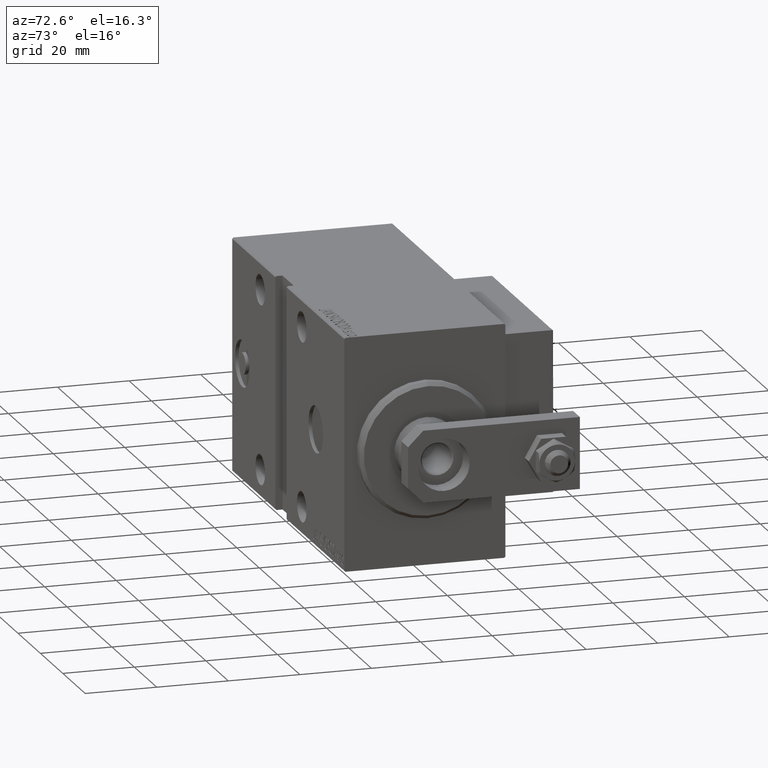
[diagram: clean part render]
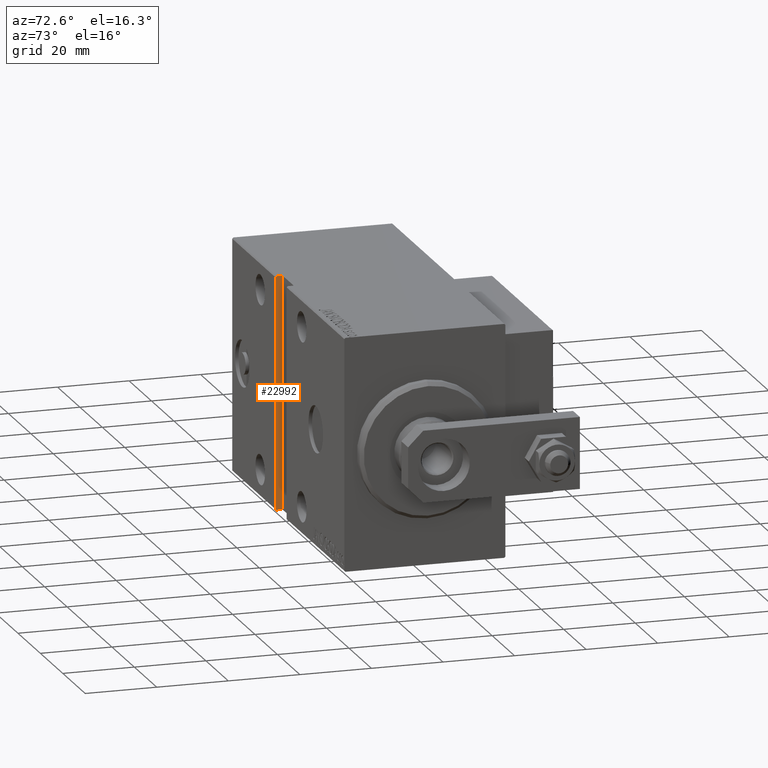
[diagram: same view with one face highlighted and labeled with its STEP entity id]
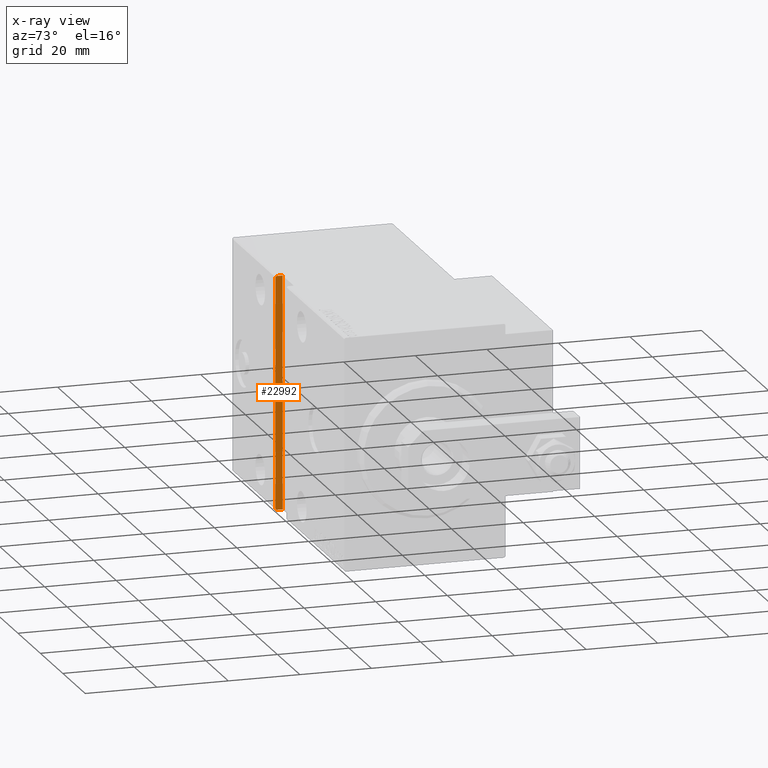
[diagram: x-ray of the same camera — body ghosted, the highlighted face saturated]
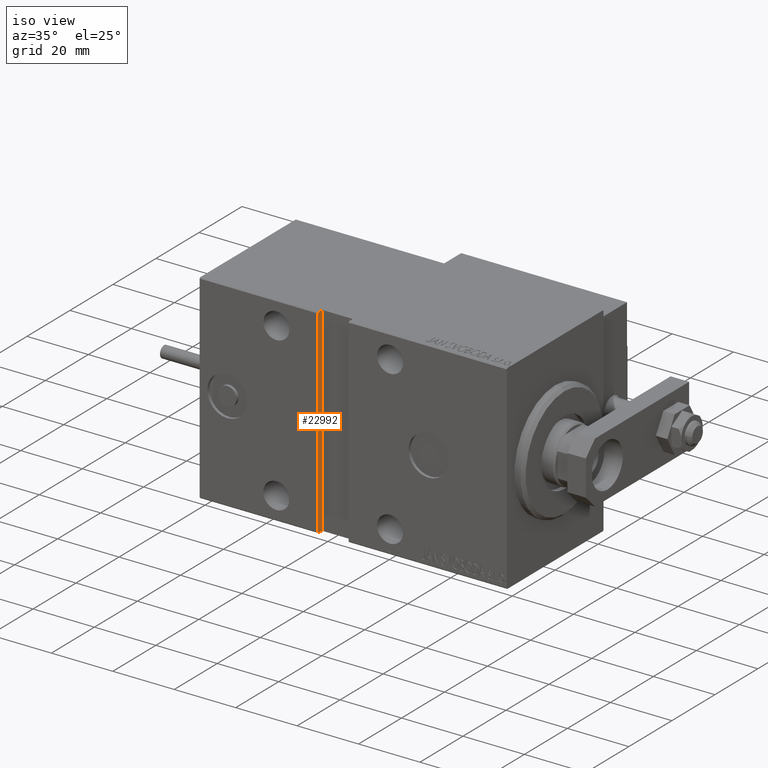
[diagram: same view with one face highlighted and labeled with its STEP entity id]
A machine part, auxiliary view. The second image highlights one B-rep face of the part: STEP entity #22992.
The next image is the same camera in x-ray: the body ghosted, the highlighted face saturated — about 0% of this face is hidden behind the body in this view.
A second angle (iso view) of the same face is appended — the face is thin or edge-on in the first view.
In plain terms, the highlighted planar face has unit normal (-1, 0, 0).
Its self-contained STEP definition (entity closure, byte-faithful):
#279 = CARTESIAN_POINT ( 'NONE',  ( 61.50000000000001421, 20.50000000000000355, -32.49999999999995737 ) ) ;
#655 = LINE ( 'NONE', #46807, #13304 ) ;
#806 = VECTOR ( 'NONE', #17089, 1000.000000000000114 ) ;
#1263 = EDGE_CURVE ( 'NONE', #45128, #39752, #27006, .T. ) ;
#1712 = CARTESIAN_POINT ( 'NONE',  ( 61.50000000000001421, 22.19999999999997442, 32.50000000000000711 ) ) ;
#2321 = LINE ( 'NONE', #34238, #15883 ) ;
#2852 = CARTESIAN_POINT ( 'NONE',  ( 61.50000000000001421, 20.50000000000000711, -32.50000000000000000 ) ) ;
#3521 = CARTESIAN_POINT ( 'NONE',  ( 61.50000000000001421, 22.19999999999998153, -32.49999999999995737 ) ) ;
#3850 = EDGE_CURVE ( 'NONE', #28766, #10313, #25151, .T. ) ;
#4070 = DIRECTION ( 'NONE',  ( -0.000000000000000000, 1.000000000000000000, 1.261617073437677752E-16 ) ) ;
#4900 = VERTEX_POINT ( 'NONE', #33049 ) ;
#6638 = DIRECTION ( 'NONE',  ( 0.000000000000000000, 0.000000000000000000, -1.000000000000000000 ) ) ;
#7067 = ORIENTED_EDGE ( 'NONE', *, *, #3850, .T. ) ;
#10313 = VERTEX_POINT ( 'NONE', #27824 ) ;
#10486 = VECTOR ( 'NONE', #4070, 1000.000000000000000 ) ;
#10655 = CARTESIAN_POINT ( 'NONE',  ( 61.50000000000001421, 22.19999999999997442, 32.50000000000000711 ) ) ;
#11366 = DIRECTION ( 'NONE',  ( -0.000000000000000000, 1.067522139062650918E-16, -1.000000000000000000 ) ) ;
#13202 = EDGE_CURVE ( 'NONE', #4900, #40748, #2321, .T. ) ;
#13304 = VECTOR ( 'NONE', #43282, 1000.000000000000000 ) ;
#15883 = VECTOR ( 'NONE', #22887, 1000.000000000000000 ) ;
#16552 = EDGE_CURVE ( 'NONE', #10313, #45128, #18944, .T. ) ;
#17089 = DIRECTION ( 'NONE',  ( -0.000000000000000000, 0.7071067811865392461, -0.7071067811865556774 ) ) ;
#17095 = ORIENTED_EDGE ( 'NONE', *, *, #32918, .T. ) ;
#18944 = LINE ( 'NONE', #23206, #36892 ) ;
#22819 = AXIS2_PLACEMENT_3D ( 'NONE', #35463, #41193, #6638 ) ;
#22887 = DIRECTION ( 'NONE',  ( -0.000000000000000000, 1.067522139062650918E-16, -1.000000000000000000 ) ) ;
#22992 = ADVANCED_FACE ( 'NONE', ( #43543 ), #39504, .F. ) ;
#23206 = CARTESIAN_POINT ( 'NONE',  ( 61.50000000000001421, 22.50000000000000355, -32.49999999999995737 ) ) ;
#25151 = LINE ( 'NONE', #1712, #806 ) ;
#25299 = ORIENTED_EDGE ( 'NONE', *, *, #13202, .F. ) ;
#26383 = EDGE_LOOP ( 'NONE', ( #42474, #43175, #30592, #25299, #17095, #7067 ) ) ;
#27006 = LINE ( 'NONE', #42416, #45840 ) ;
#27824 = CARTESIAN_POINT ( 'NONE',  ( 61.50000000000001421, 22.49999999999999645, 32.19999999999998153 ) ) ;
#28766 = VERTEX_POINT ( 'NONE', #10655 ) ;
#30070 = DIRECTION ( 'NONE',  ( 0.000000000000000000, -0.7071067811865474617, -0.7071067811865474617 ) ) ;
#30592 = ORIENTED_EDGE ( 'NONE', *, *, #47595, .F. ) ;
#32918 = EDGE_CURVE ( 'NONE', #4900, #28766, #655, .T. ) ;
#33049 = CARTESIAN_POINT ( 'NONE',  ( 61.50000000000001421, 20.49999999999999645, 32.50000000000000711 ) ) ;
#34238 = CARTESIAN_POINT ( 'NONE',  ( 61.50000000000001421, 20.50000000000000355, -32.49999999999995737 ) ) ;
#35463 = CARTESIAN_POINT ( 'NONE',  ( 61.50000000000001421, 20.50000000000000355, -32.49999999999995737 ) ) ;
#36892 = VECTOR ( 'NONE', #11366, 1000.000000000000000 ) ;
#39131 = LINE ( 'NONE', #279, #10486 ) ;
#39504 = PLANE ( 'NONE',  #22819 ) ;
#39752 = VERTEX_POINT ( 'NONE', #3521 ) ;
#40748 = VERTEX_POINT ( 'NONE', #2852 ) ;
#41193 = DIRECTION ( 'NONE',  ( 1.000000000000000000, 0.000000000000000000, 0.000000000000000000 ) ) ;
#42416 = CARTESIAN_POINT ( 'NONE',  ( 61.50000000000001421, 22.50000000000000355, -32.19999999999998153 ) ) ;
#42474 = ORIENTED_EDGE ( 'NONE', *, *, #16552, .T. ) ;
#43175 = ORIENTED_EDGE ( 'NONE', *, *, #1263, .T. ) ;
#43282 = DIRECTION ( 'NONE',  ( -0.000000000000000000, 1.000000000000000000, 1.261617073437677752E-16 ) ) ;
#43543 = FACE_OUTER_BOUND ( 'NONE', #26383, .T. ) ;
#45128 = VERTEX_POINT ( 'NONE', #48385 ) ;
#45840 = VECTOR ( 'NONE', #30070, 1000.000000000000114 ) ;
#46807 = CARTESIAN_POINT ( 'NONE',  ( 61.50000000000001421, 20.49999999999999645, 32.50000000000000711 ) ) ;
#47595 = EDGE_CURVE ( 'NONE', #40748, #39752, #39131, .T. ) ;
#48385 = CARTESIAN_POINT ( 'NONE',  ( 61.50000000000001421, 22.50000000000000355, -32.19999999999998153 ) ) ;